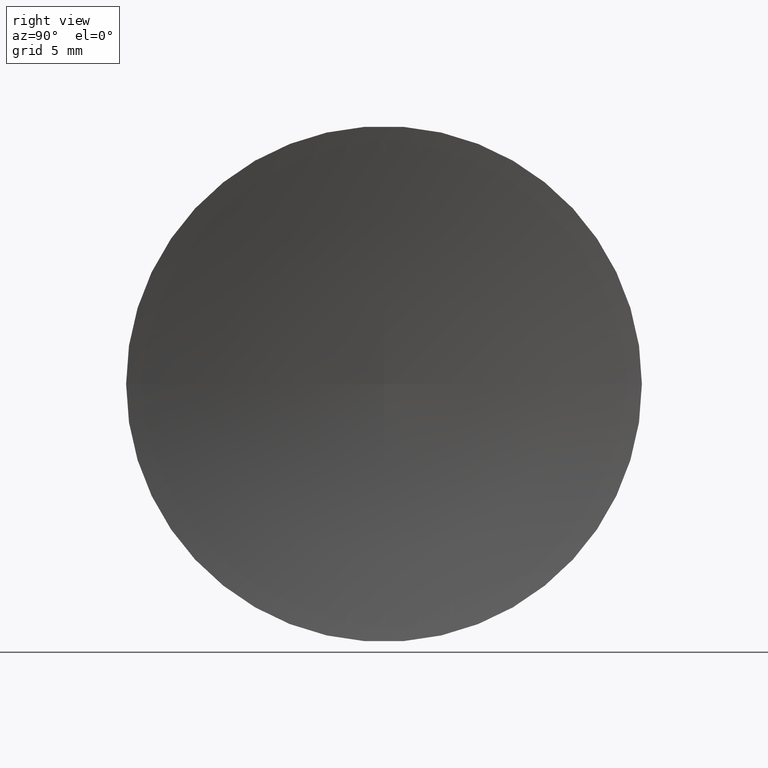
[diagram: clean part render]
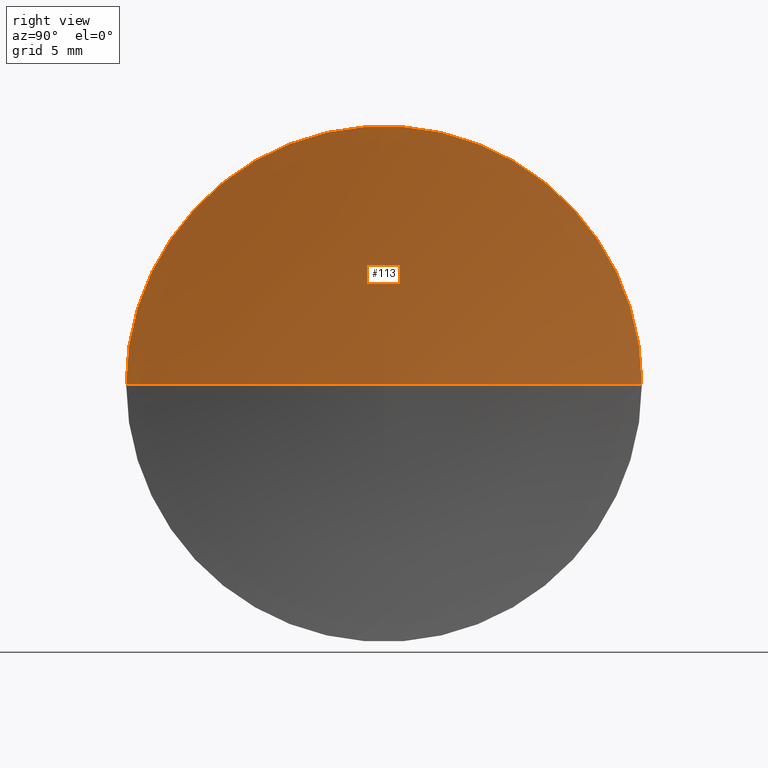
[diagram: same view with one face highlighted and labeled with its STEP entity id]
A machine part, right view. The second image highlights one B-rep face of the part: STEP entity #113.
In plain terms, the highlighted toroidal blend (fillet) surface has major radius 0.0021 mm and minor (blend) radius 64.55 mm.
Its self-contained STEP definition (entity closure, byte-faithful):
#6 = CARTESIAN_POINT ( 'NONE',  ( 123.9081901580211100, 32.57872591329306300, 0.0000000000000000000 ) ) ;
#10 = CIRCLE ( 'NONE', #39, 64.54999999999998300 ) ;
#12 = CARTESIAN_POINT ( 'NONE',  ( 123.9081901580211100, 32.58086067571049700, 0.0000000000000000000 ) ) ;
#14 = CARTESIAN_POINT ( 'NONE',  ( 60.58047800621231000, 32.57872591329309800, 0.0000000000000000000 ) ) ;
#17 = DIRECTION ( 'NONE',  ( -1.000000000000000000, 4.853228644174421400E-016, -0.0000000000000000000 ) ) ;
#23 = EDGE_CURVE ( 'NONE', #151, #99, #110, .T. ) ;
#24 = VERTEX_POINT ( 'NONE', #141 ) ;
#30 = DIRECTION ( 'NONE',  ( -5.551115123125779700E-016, -1.000000000000000000, 0.0000000000000000000 ) ) ;
#37 = FACE_OUTER_BOUND ( 'NONE', #87, .T. ) ;
#39 = AXIS2_PLACEMENT_3D ( 'NONE', #12, #72, #140 ) ;
#41 = EDGE_CURVE ( 'NONE', #24, #99, #10, .T. ) ;
#42 = CARTESIAN_POINT ( 'NONE',  ( 123.9081901580211100, 32.57659115087562900, -2.614329961454108600E-019 ) ) ;
#51 = AXIS2_PLACEMENT_3D ( 'NONE', #14, #17, #30 ) ;
#52 = ORIENTED_EDGE ( 'NONE', *, *, #41, .T. ) ;
#53 = AXIS2_PLACEMENT_3D ( 'NONE', #42, #104, #115 ) ;
#64 = DIRECTION ( 'NONE',  ( -4.853228644174421400E-016, -1.000000000000000000, 0.0000000000000000000 ) ) ;
#72 = DIRECTION ( 'NONE',  ( 0.0000000000000000000, -0.0000000000000000000, -1.000000000000000000 ) ) ;
#75 = DIRECTION ( 'NONE',  ( -1.000000000000000000, 4.853228644174421400E-016, -0.0000000000000000000 ) ) ;
#87 = EDGE_LOOP ( 'NONE', ( #123, #129, #52 ) ) ;
#89 = CARTESIAN_POINT ( 'NONE',  ( 60.58047800621231700, 45.07872591329309100, 1.530808498934191300E-015 ) ) ;
#99 = VERTEX_POINT ( 'NONE', #160 ) ;
#104 = DIRECTION ( 'NONE',  ( -5.943490924618453600E-032, -1.224646799147353200E-016, 1.000000000000000000 ) ) ;
#110 = CIRCLE ( 'NONE', #53, 64.54999999999998300 ) ;
#113 = ADVANCED_FACE ( 'NONE', ( #37 ), #166, .F. ) ;
#115 = DIRECTION ( 'NONE',  ( 0.0000000000000000000, -1.000000000000000000, -1.224646799147353000E-016 ) ) ;
#123 = ORIENTED_EDGE ( 'NONE', *, *, #23, .F. ) ;
#129 = ORIENTED_EDGE ( 'NONE', *, *, #162, .F. ) ;
#136 = CIRCLE ( 'NONE', #51, 12.50000000000000700 ) ;
#140 = DIRECTION ( 'NONE',  ( -1.000000000000000000, 0.0000000000000000000, 0.0000000000000000000 ) ) ;
#141 = CARTESIAN_POINT ( 'NONE',  ( 60.58047800621231000, 20.07872591329309100, 0.0000000000000000000 ) ) ;
#151 = VERTEX_POINT ( 'NONE', #89 ) ;
#160 = CARTESIAN_POINT ( 'NONE',  ( 59.35819019332097200, 32.57872591329309800, 0.0000000000000000000 ) ) ;
#162 = EDGE_CURVE ( 'NONE', #24, #151, #136, .T. ) ;
#165 = AXIS2_PLACEMENT_3D ( 'NONE', #6, #75, #64 ) ;
#166 = TOROIDAL_SURFACE ( 'NONE', #165, -0.002134762417436853900, 64.54999999999998300 ) ;